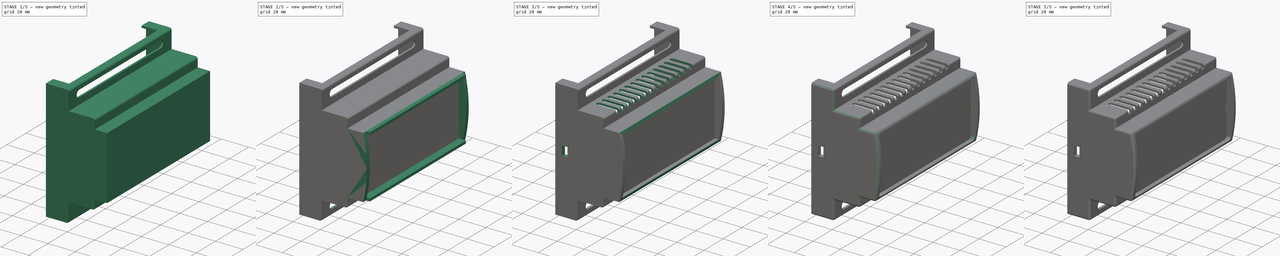
[diagram: build sequence overview — one tinted view per stage of 5, left to right]
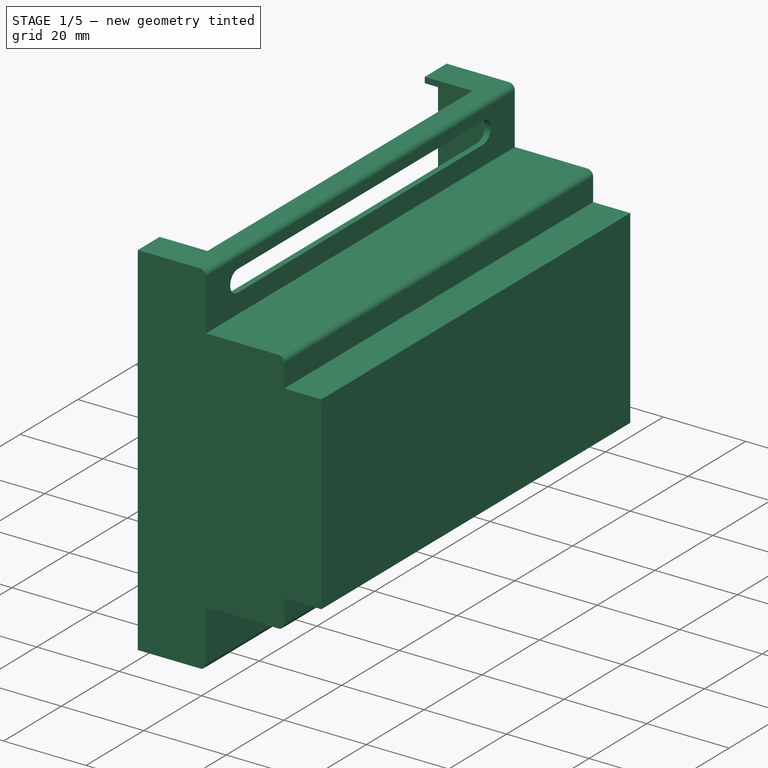
[diagram: stage 1 of 5 — iso view after this stage's code; geometry added in this stage tinted green]
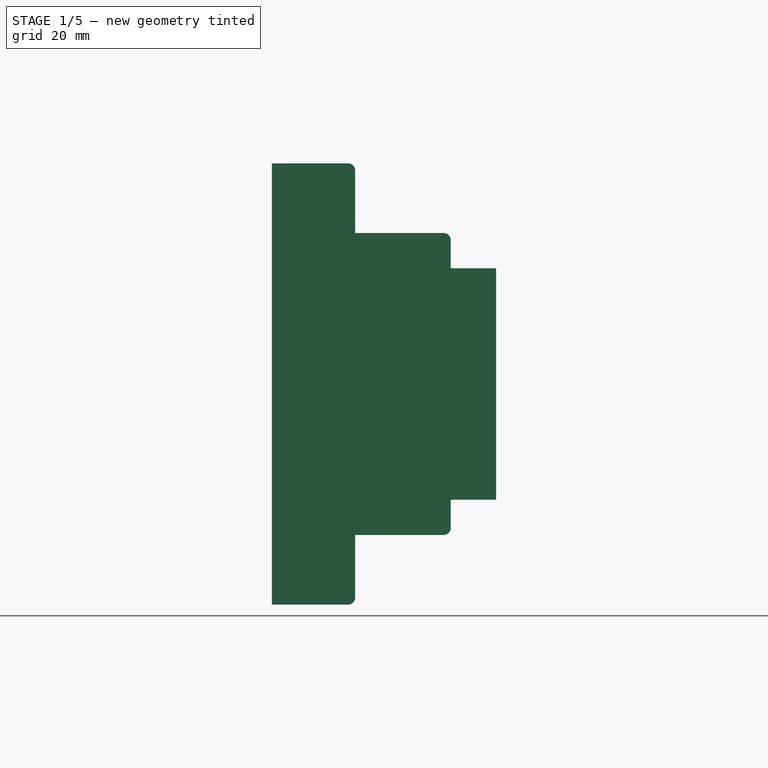
[diagram: stage 1 of 5 — front view after this stage's code; geometry added in this stage tinted green]
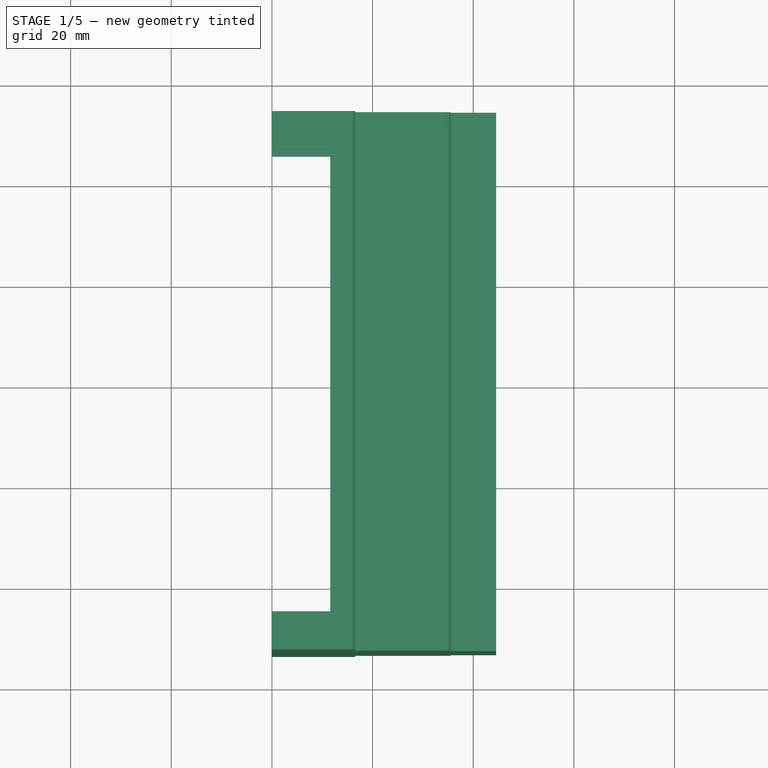
[diagram: stage 1 of 5 — top view after this stage's code; geometry added in this stage tinted green]
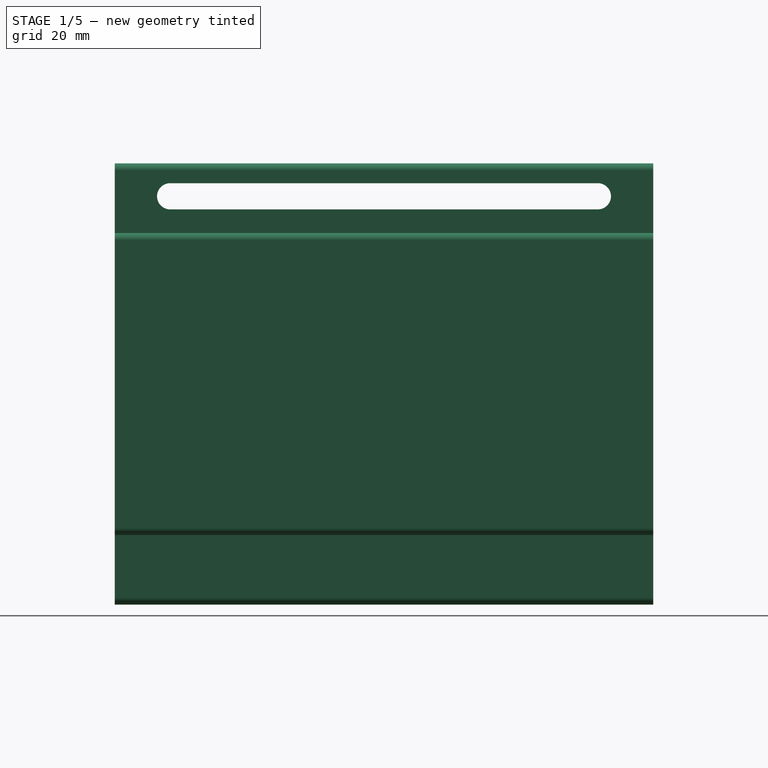
[diagram: stage 1 of 5 — right view after this stage's code; geometry added in this stage tinted green]
FCSTD DOCUMENT  (FreeCAD 1.0R39285 (Git))
Label: Parte superior
License: All rights reserved
LicenseURL: https://en.wikipedia.org/wiki/All_rights_reserved
objects: Sketcher::SketchObject×15, PartDesign::Pad×8, PartDesign::Mirrored×7, PartDesign::Pocket×7, PartDesign::LinearPattern×2, PartDesign::Fillet×2, PartDesign::Plane×1, PartDesign::Body×1
note: 101 computed .brp shape members not serialized (recipe doc carries the construction recipe); baked Part::Feature solids carry a one-line shape summary decoded from their .brp

FEATURE [Sketcher::SketchObject] Sketch
  ArcFitTolerance = 1e-06
  AttachmentSupport = -> [XZ_Plane]
  FullyConstrained = true
  MakeInternals = false
  MapMode = 5
  Placement = pos=(0,0,0) rot=(1,0,0;1.5708rad)
  sketch-geometry (35):
    g0: LineSegment StartX=0 StartY=43.85 StartZ=0 EndX=15.14 EndY=43.85 EndZ=0
    g1: LineSegment StartX=16.54 StartY=42.45 StartZ=0 EndX=16.54 EndY=30 EndZ=0
    g2: LineSegment StartX=16.54 StartY=30 StartZ=0 EndX=34.14 EndY=30 EndZ=0
    g3: LineSegment StartX=35.54 StartY=28.6 StartZ=0 EndX=35.54 EndY=23 EndZ=0
    g4: LineSegment StartX=44.54 StartY=23 StartZ=0 EndX=44.54 EndY=0 EndZ=0
    g5: LineSegment [constr] StartX=44.54 StartY=0 StartZ=0 EndX=0 EndY=0 EndZ=0
    g6: LineSegment StartX=0 StartY=-43.85 StartZ=0 EndX=15.14 EndY=-43.85 EndZ=0
    g7: LineSegment StartX=16.54 StartY=-42.45 StartZ=0 EndX=16.54 EndY=-30 EndZ=0
    g8: LineSegment StartX=16.54 StartY=-30 StartZ=0 EndX=34.14 EndY=-30 EndZ=0
    g9: LineSegment StartX=35.54 StartY=-28.6 StartZ=0 EndX=35.54 EndY=-23 EndZ=0
    g10: LineSegment StartX=44.54 StartY=-23 StartZ=0 EndX=44.54 EndY=0 EndZ=0
    g11: ArcOfCircle CenterX=15.14 CenterY=42.45 CenterZ=0 NormalX=0 NormalY=0 NormalZ=1 AngleXU=0 Radius=1.4 StartAngle=-1.8e-15 EndAngle=1.5708
    g12: GeomPoint [constr] X=16.54 Y=43.85 Z=0
    g13: ArcOfCircle CenterX=34.14 CenterY=28.6 CenterZ=0 NormalX=0 NormalY=0 NormalZ=1 AngleXU=0 Radius=1.4 StartAngle=0 EndAngle=1.5708
    g14: GeomPoint [constr] X=35.54 Y=30 Z=0
    g15: ArcOfCircle CenterX=34.14 CenterY=-28.6 CenterZ=0 NormalX=0 NormalY=0 NormalZ=1 AngleXU=0 Radius=1.4 StartAngle=4.71239 EndAngle=6.28319
    g16: GeomPoint [constr] X=35.54 Y=-30 Z=0
    g17: ArcOfCircle CenterX=15.14 CenterY=-42.45 CenterZ=0 NormalX=0 NormalY=0 NormalZ=1 AngleXU=0 Radius=1.4 StartAngle=4.71239 EndAngle=6.28319
    g18: GeomPoint [constr] X=16.54 Y=-43.85 Z=0
    g19: LineSegment StartX=35.54 StartY=23 StartZ=0 EndX=44.54 EndY=23 EndZ=0
    g20: LineSegment StartX=35.54 StartY=-23 StartZ=0 EndX=44.54 EndY=-23 EndZ=0
    g21: LineSegment StartX=0 StartY=-42.45 StartZ=0 EndX=15.14 EndY=-42.45 EndZ=0
    g22: LineSegment StartX=15.14 StartY=-42.45 StartZ=0 EndX=15.14 EndY=-28.6 EndZ=0
    g23: LineSegment StartX=15.14 StartY=-28.6 StartZ=0 EndX=34.14 EndY=-28.6 EndZ=0
    g24: LineSegment StartX=34.14 StartY=-28.6 StartZ=0 EndX=34.14 EndY=-21.6 EndZ=0
    g25: LineSegment StartX=34.14 StartY=-21.6 StartZ=0 EndX=43.14 EndY=-21.6 EndZ=0
    g26: LineSegment StartX=43.14 StartY=-21.6 StartZ=0 EndX=43.14 EndY=0 EndZ=0
    g27: LineSegment StartX=43.14 StartY=21.6 StartZ=0 EndX=43.14 EndY=0 EndZ=0
    g28: LineSegment StartX=34.14 StartY=21.6 StartZ=0 EndX=43.14 EndY=21.6 EndZ=0
    g29: LineSegment StartX=34.14 StartY=28.6 StartZ=0 EndX=34.14 EndY=21.6 EndZ=0
    g30: LineSegment StartX=15.14 StartY=28.6 StartZ=0 EndX=34.14 EndY=28.6 EndZ=0
    g31: LineSegment StartX=15.14 StartY=42.45 StartZ=0 EndX=15.14 EndY=28.6 EndZ=0
    g32: LineSegment StartX=0 StartY=42.45 StartZ=0 EndX=15.14 EndY=42.45 EndZ=0
    g33: LineSegment StartX=0 StartY=-42.45 StartZ=0 EndX=0 EndY=-43.85 EndZ=0
    g34: LineSegment StartX=0 StartY=43.85 StartZ=0 EndX=0 EndY=42.45 EndZ=0
  constraints (94):
    c: PointOnObject(g0,g-2)
    c: Horizontal(g0)
    c: Vertical(g1)
    c: Coincident(g2,g1)
    c: Horizontal(g2)
    c: Vertical(g3)
    c: PointOnObject(g4,g-1)
    c: Vertical(g4)
    c: Coincident(g5,g4)
    c: Coincident(g5,g-1)
    c: Coincident(g8,g7)
    c: Equal(g4,g10)
    c: Vertical(g9)
    c: Horizontal(g8)
    c: Horizontal(g6)
    c: Vertical(g7)
    c: Vertical(g10)
    c: Distance(g8,g2) = 60
    c: Distance(g6,g0) = 87.7
    c: Coincident(g10,g4)
    c: Distance(g-2,g7) = 16.54
    c: Distance(g-2,g9) = 35.54
    c: PointOnObject(g12,g0)
    c: PointOnObject(g12,g1)
    c: Tangent(g0,g11) = 1.5708
    c: Tangent(g1,g11) = 1.5708
    c: PointOnObject(g14,g2)
    c: PointOnObject(g14,g3)
    c: Tangent(g2,g13) = 1.5708
    c: Tangent(g3,g13) = 1.5708
    c: PointOnObject(g16,g8)
    c: PointOnObject(g16,g9)
    c: Tangent(g8,g15) = -1.5708
    c: Tangent(g9,g15) = -1.5708
    c: PointOnObject(g18,g6)
    c: PointOnObject(g18,g7)
    c: Tangent(g6,g17) = -1.5708
    c: Tangent(g7,g17) = -1.5708
    c: Equal(g17,g15)
    c: Equal(g15,g13)
    c: Equal(g13,g11)
    c: Radius(g11) = 1.4
    c: Symmetric(g1,g7,g5)
    c: Symmetric(g0,g6,g5)
    c: Coincident(g19,g3)
    c: Coincident(g19,g4)
    c: Horizontal(g19)
    c: Coincident(g20,g9)
    c: Coincident(g20,g10)
    c: Horizontal(g20)
    c: Equal(g19,g20)
    c: Distance(g19,g20) = 46
    c: Distance(g-2,g10) = 44.54
    c: Coincident(g21,g22)
    c: Coincident(g22,g23)
    c: Coincident(g23,g24)
    c: Coincident(g24,g25)
    c: Coincident(g25,g26)
    c: Coincident(g26,g27)
    c: Coincident(g27,g28)
    c: Coincident(g28,g29)
    c: Coincident(g29,g30)
    c: Coincident(g30,g31)
    c: Coincident(g31,g32)
    c: Coincident(g33,g21)
    c: Coincident(g33,g6)
    c: Vertical(g33)
    c: Coincident(g34,g0)
    c: Coincident(g34,g32)
    c: Vertical(g34)
    c: Horizontal(g32)
    c: Vertical(g31)
    c: Horizontal(g30)
    c: Horizontal(g28)
    c: Vertical(g29)
    c: Vertical(g27)
    c: Vertical(g26)
    c: Vertical(g24)
    c: Vertical(g22)
    c: Horizontal(g25)
    c: Horizontal(g23)
    c: Horizontal(g21)
    c: Distance(g0,g32) = 1.4
    c: Vertical(g0,g31)
    c: Vertical(g29,g2)
    c: Horizontal(g29,g3)
    c: Distance(g28,g19) = 1.4
    c: Horizontal(g26,g4)
    c: Equal(g0,g21)
    c: Equal(g26,g27)
    c: Equal(g28,g25)
    c: Equal(g24,g29)
    c: Equal(g31,g22)
    c: Distance(g4,g27) = 1.4
FEATURE [PartDesign::Pad] Pad
  Direction = (0,-1,2e-16)
  Length = 107
  Length2 = 10
  Midplane = true
  Placement = pos=(0,0,0) rot=(1,0,0;1.5708rad)
  Profile = -> Sketch
  ReferenceAxis = -> Sketch [N_Axis]
  Refine = true
  Suppressed = false
  Type = 0
FEATURE [PartDesign::Plane] DatumPlane
  AttachmentSupport = -> [Pad]
  Length = 91.043
  MapMode = 5
  Placement = pos=(0,-53.5,0) rot=(1,0,0;1.5708rad)
  ResizeMode = 0
  Width = 103.903
FEATURE [Sketcher::SketchObject] Sketch001
  ArcFitTolerance = 1e-06
  AttachmentSupport = -> [DatumPlane]
  ExternalGeometry = -> [Pad]
  FullyConstrained = true
  MakeInternals = false
  MapMode = 5
  Placement = pos=(0,-53.5,0) rot=(1,0,0;1.5708rad)
  sketch-geometry (12):
    g0: LineSegment StartX=0 StartY=42.45 StartZ=0 EndX=15.14 EndY=42.45 EndZ=0
    g1: LineSegment StartX=15.14 StartY=28.6 StartZ=0 EndX=15.14 EndY=42.45 EndZ=0
    g2: LineSegment StartX=15.14 StartY=28.6 StartZ=0 EndX=34.14 EndY=28.6 EndZ=0
    g3: LineSegment StartX=34.14 StartY=21.6 StartZ=0 EndX=34.14 EndY=28.6 EndZ=0
    g4: LineSegment StartX=34.14 StartY=21.6 StartZ=0 EndX=43.14 EndY=21.6 EndZ=0
    g5: LineSegment StartX=43.14 StartY=21.6 StartZ=0 EndX=43.14 EndY=-21.6 EndZ=0
    g6: LineSegment StartX=34.14 StartY=-21.6 StartZ=0 EndX=34.14 EndY=-28.6 EndZ=0
    g7: LineSegment StartX=34.14 StartY=-21.6 StartZ=0 EndX=43.14 EndY=-21.6 EndZ=0
    g8: LineSegment StartX=34.14 StartY=-28.6 StartZ=0 EndX=15.14 EndY=-28.6 EndZ=0
    g9: LineSegment StartX=15.14 StartY=-28.6 StartZ=0 EndX=15.14 EndY=-42.45 EndZ=0
    g10: LineSegment StartX=15.14 StartY=-42.45 StartZ=0 EndX=0 EndY=-42.45 EndZ=0
    g11: LineSegment StartX=0 StartY=-42.45 StartZ=0 EndX=0 EndY=42.45 EndZ=0
  constraints (24):
    c: Coincident(g0,g-3)
    c: Coincident(g0,g-4)
    c: Coincident(g1,g-5)
    c: Coincident(g1,g0)
    c: Coincident(g2,g1)
    c: Coincident(g2,g-6)
    c: Coincident(g3,g-7)
    c: Coincident(g3,g2)
    c: Coincident(g4,g3)
    c: Coincident(g4,g-8)
    c: Coincident(g5,g4)
    c: Coincident(g5,g-9)
    c: Coincident(g6,g-10)
    c: Coincident(g6,g-11)
    c: Coincident(g7,g6)
    c: Coincident(g7,g5)
    c: Coincident(g8,g6)
    c: Coincident(g8,g-12)
    c: Coincident(g9,g8)
    c: Coincident(g9,g-13)
    c: Coincident(g10,g9)
    c: Coincident(g10,g-13)
    c: Coincident(g11,g10)
    c: Coincident(g11,g0)
FEATURE [PartDesign::Pad] Pad001
  BaseFeature = -> Pad
  Direction = (0,-1,2e-16)
  Length = 3
  Length2 = 10
  Placement = pos=(0,0,0) rot=(1,0,0;1.5708rad)
  Profile = -> Sketch001
  ReferenceAxis = -> Sketch001 [N_Axis]
  Refine = true
  Reversed = true
  Suppressed = false
  Type = 0
FEATURE [PartDesign::Mirrored] Mirrored
  BaseFeature = -> Pad001
  MirrorPlane = -> XZ_Plane
  Originals = -> [Pad001]
  Placement = pos=(0,0,0) rot=(1,0,0;1.5708rad)
  Refine = true
  Suppressed = false
  TransformMode = 0
FEATURE [Sketcher::SketchObject] Sketch002
  ArcFitTolerance = 1e-06
  AttachmentSupport = -> [Mirrored]
  FullyConstrained = true
  MakeInternals = false
  MapMode = 5
  Placement = pos=(0,1.93e-14,43.85) rot=(0,0,1;3.14159rad)
  sketch-geometry (4):
    g0: LineSegment StartX=0 StartY=-45.925 StartZ=0 EndX=0 EndY=45.925 EndZ=0
    g1: LineSegment StartX=0 StartY=45.925 StartZ=0 EndX=-11.6 EndY=45.925 EndZ=0
    g2: LineSegment StartX=-11.6 StartY=45.925 StartZ=0 EndX=-11.6 EndY=-45.925 EndZ=0
    g3: LineSegment StartX=-11.6 StartY=-45.925 StartZ=0 EndX=0 EndY=-45.925 EndZ=0
  constraints (11):
    c: Coincident(g0,g1)
    c: Coincident(g1,g2)
    c: Coincident(g2,g3)
    c: Coincident(g3,g0)
    c: Vertical(g0)
    c: Horizontal(g1)
    c: Horizontal(g3)
    c: PointOnObject(g0,g-2)
    c: Distance(g-1,g3) = 45.925
    c: Symmetric(g2,g1,g-1)
    c: Distance(g0,g2) = 11.6
FEATURE [PartDesign::Pocket] Pocket
  BaseFeature = -> Mirrored
  Direction = (0,0,-1)
  Length = 0
  Length2 = 5
  Placement = pos=(0,0,0) rot=(1,0,0;1.5708rad)
  Profile = -> Sketch002
  ReferenceAxis = -> Sketch002 [N_Axis]
  Refine = true
  Suppressed = false
  Type = 3
  UpToFace = -> Mirrored [Face4]
FEATURE [Sketcher::SketchObject] Sketch003
  ArcFitTolerance = 1e-06
  AttachmentSupport = -> [Pocket]
  FullyConstrained = true
  MakeInternals = false
  MapMode = 5
  Placement = pos=(16.54,0,0) rot=(0.707107,0,0.707107;3.14159rad)
  sketch-geometry (7):
    g0: LineSegment [constr] StartX=37.3 StartY=42.5 StartZ=0 EndX=37.3 EndY=-42.5 EndZ=0
    g1: ArcOfCircle CenterX=37.3 CenterY=42.5 CenterZ=0 NormalX=0 NormalY=0 NormalZ=-1 AngleXU=-1.5708 Radius=2.6 StartAngle=1.5708 EndAngle=4.71239
    g2: LineSegment StartX=39.9 StartY=42.5 StartZ=0 EndX=39.9 EndY=0 EndZ=0
    g3: LineSegment StartX=39.9 StartY=0 StartZ=0 EndX=39.9 EndY=-42.5 EndZ=0
    g4: ArcOfCircle CenterX=37.3 CenterY=-42.5 CenterZ=0 NormalX=0 NormalY=0 NormalZ=-1 AngleXU=1.5708 Radius=2.6 StartAngle=1.5708 EndAngle=4.71239
    g5: LineSegment StartX=34.7 StartY=0 StartZ=0 EndX=34.7 EndY=-42.5 EndZ=0
    g6: LineSegment StartX=34.7 StartY=42.5 StartZ=0 EndX=34.7 EndY=0 EndZ=0
  constraints (17):
    c: Distance(g-2,g0) = 37.3
    c: Symmetric(g0,g0,g-1)
    c: DistanceY(g0,g0) = 85
    c: Tangent(g1,g2) = 1.5708
    c: Tangent(g1,g6) = -1.5708
    c: Coincident(g2,g3)
    c: Tangent(g3,g4) = 1.5708
    c: Tangent(g4,g5) = -1.5708
    c: Coincident(g5,g6)
    c: PointOnObject(g2,g-1)
    c: PointOnObject(g5,g-1)
    c: Symmetric(g1,g1,g0)
    c: Symmetric(g4,g3,g0)
    c: Vertical(g2)
    c: Vertical(g3)
    c: Vertical(g5)
    c: Distance(g2,g0) = 2.6
FEATURE [PartDesign::Pocket] Pocket001
  BaseFeature = -> Pocket
  Direction = (-1,0,2e-16)
  Length = 5
  Length2 = 5
  Placement = pos=(0,0,0) rot=(1,0,0;1.5708rad)
  Profile = -> Sketch003
  ReferenceAxis = -> Sketch003 [N_Axis]
  Refine = true
  Suppressed = false
  Type = 1
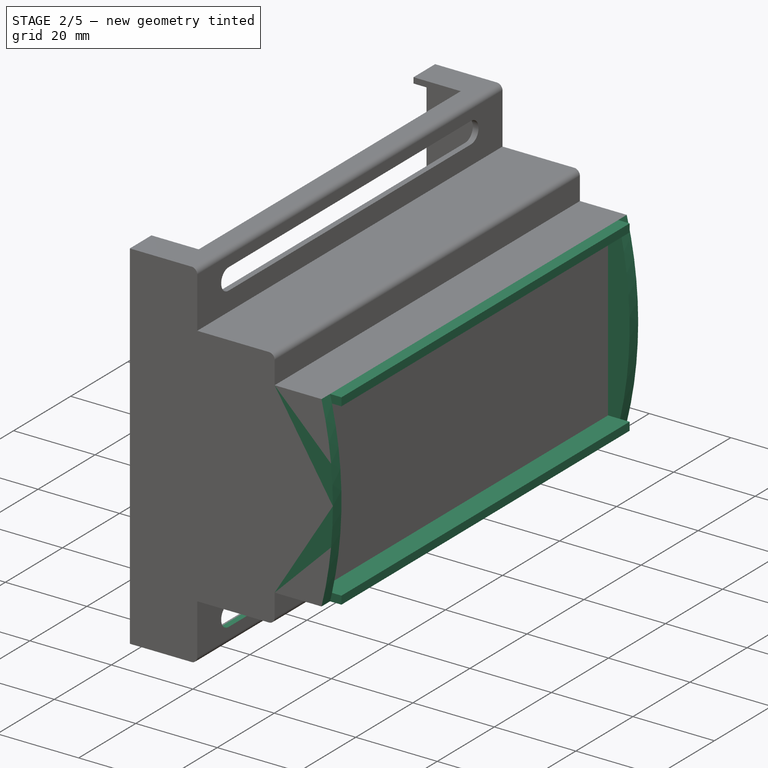
[diagram: stage 2 of 5 — iso view after this stage's code; geometry added in this stage tinted green]
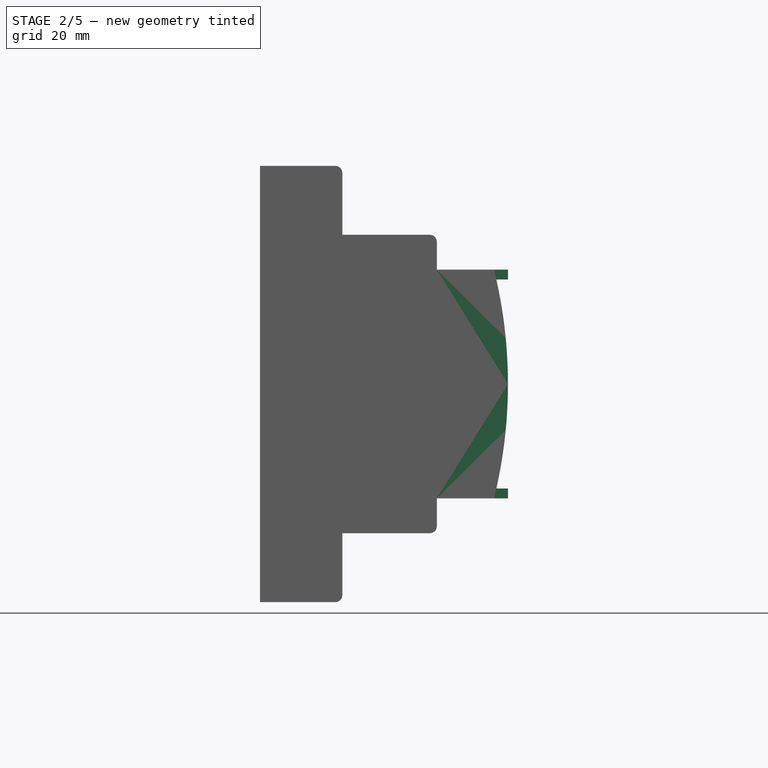
[diagram: stage 2 of 5 — front view after this stage's code; geometry added in this stage tinted green]
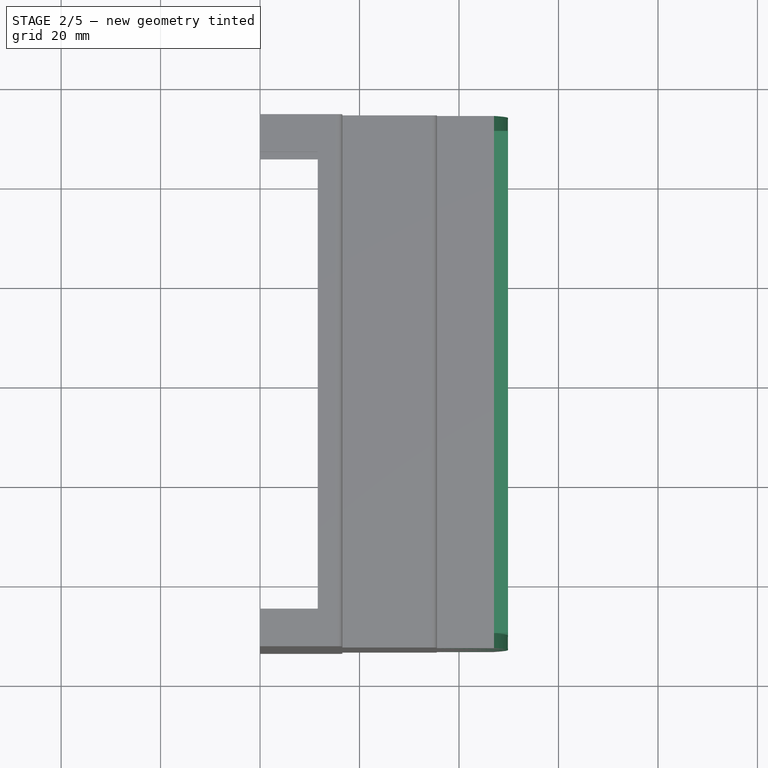
[diagram: stage 2 of 5 — top view after this stage's code; geometry added in this stage tinted green]
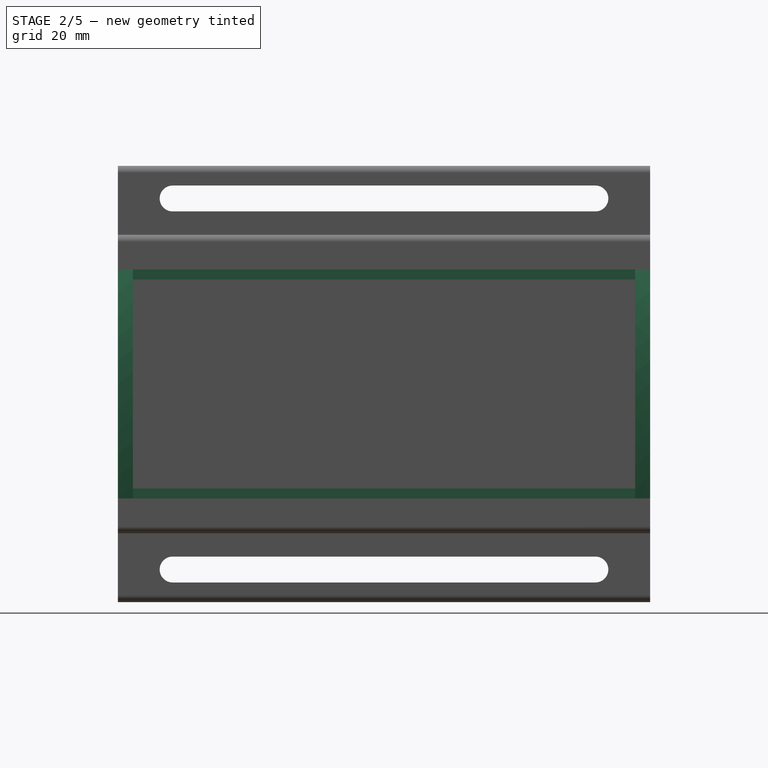
[diagram: stage 2 of 5 — right view after this stage's code; geometry added in this stage tinted green]
FEATURE [PartDesign::Mirrored] Mirrored001
  BaseFeature = -> Pocket001
  MirrorPlane = -> Sketch003 [V_Axis]
  Originals = -> [Pocket001]
  Placement = pos=(0,0,0) rot=(1,0,0;1.5708rad)
  Refine = true
  Suppressed = false
  TransformMode = 0
FEATURE [Sketcher::SketchObject] Sketch004
  ArcFitTolerance = 1e-06
  AttachmentSupport = -> [Mirrored001]
  ExternalGeometry = -> [Mirrored001]
  FullyConstrained = true
  MakeInternals = false
  MapMode = 5
  Placement = pos=(0,-53.5,2.62e-14) rot=(1,0,0;1.5708rad)
  sketch-geometry (5):
    g0: LineSegment StartX=44.54 StartY=23 StartZ=0 EndX=44.54 EndY=-23 EndZ=0
    g1: LineSegment StartX=44.54 StartY=-23 StartZ=0 EndX=47.04 EndY=-23 EndZ=0
    g2: LineSegment StartX=44.54 StartY=23 StartZ=0 EndX=47.04 EndY=23 EndZ=0
    g3: ArcOfCircle CenterX=-46.0243 CenterY=1.7615e-12 CenterZ=0 NormalX=0 NormalY=0 NormalZ=1 AngleXU=0 Radius=95.8643 StartAngle=6.0409 EndAngle=6.52547
    g4: GeomPoint X=47.5116 Y=-21 Z=0
  constraints (13):
    c: Coincident(g0,g-3)
    c: Coincident(g0,g-3)
    c: Coincident(g1,g0)
    c: Horizontal(g1)
    c: Coincident(g2,g0)
    c: Horizontal(g2)
    c: Equal(g2,g1)
    c: Coincident(g3,g2)
    c: Coincident(g3,g1)
    c: Distance(g1,g1) = 2.5
    c: Distance(g3,g0) = -5.3
    c: PointOnObject(g4,g3)
    c: DistanceY(g1,g4) = 2
FEATURE [PartDesign::Pad] Pad002
  BaseFeature = -> Mirrored001
  Direction = (0,-1,2e-16)
  Length = 3
  Length2 = 10
  Placement = pos=(0,0,0) rot=(1,0,0;1.5708rad)
  Profile = -> Sketch004
  ReferenceAxis = -> Sketch004 [N_Axis]
  Refine = true
  Reversed = true
  Suppressed = false
  Type = 0
FEATURE [PartDesign::Mirrored] Mirrored002
  BaseFeature = -> Pad002
  MirrorPlane = -> XZ_Plane
  Originals = -> [Pad002]
  Placement = pos=(0,0,0) rot=(1,0,0;1.5708rad)
  Refine = true
  Suppressed = false
  TransformMode = 0
FEATURE [Sketcher::SketchObject] Sketch005
  ArcFitTolerance = 1e-06
  AttachmentSupport = -> [Mirrored002]
  ExternalGeometry = -> [Mirrored002]
  FullyConstrained = true
  MakeInternals = false
  MapMode = 5
  Placement = pos=(8.3e-15,-9.7e-15,-23) rot=(1,0,0;3.14159rad)
  sketch-geometry (6):
    g0: LineSegment StartX=47.04 StartY=-50.5 StartZ=0 EndX=44.54 EndY=-50.5 EndZ=0
    g1: LineSegment StartX=44.54 StartY=-50.5 StartZ=0 EndX=44.54 EndY=50.5 EndZ=0
    g2: LineSegment StartX=44.54 StartY=50.5 StartZ=0 EndX=47.04 EndY=50.5 EndZ=0
    g3: LineSegment StartX=47.04 StartY=-50.5 StartZ=0 EndX=49.84 EndY=-50.5 EndZ=0
    g4: LineSegment StartX=47.04 StartY=50.5 StartZ=0 EndX=49.84 EndY=50.5 EndZ=0
    g5: LineSegment StartX=49.84 StartY=50.5 StartZ=0 EndX=49.84 EndY=-50.5 EndZ=0
  constraints (12):
    c: Coincident(g0,g-5)
    c: Coincident(g0,g-5)
    c: Coincident(g1,g0)
    c: Coincident(g1,g-4)
    c: Coincident(g2,g1)
    c: Coincident(g2,g-4)
    c: Coincident(g3,g0)
    c: Coincident(g3,g-7)
    c: Coincident(g4,g2)
    c: Coincident(g4,g-6)
    c: Coincident(g5,g4)
    c: Coincident(g5,g3)
FEATURE [PartDesign::Pad] Pad003
  BaseFeature = -> Mirrored002
  Direction = (0,0,-1)
  Length = 2
  Length2 = 10
  Placement = pos=(0,0,0) rot=(1,0,0;1.5708rad)
  Profile = -> Sketch005
  ReferenceAxis = -> Sketch005 [N_Axis]
  Refine = true
  Reversed = true
  Suppressed = false
  Type = 0
  UseCustomVector = true
FEATURE [PartDesign::Mirrored] Mirrored003
  BaseFeature = -> Pad003
  MirrorPlane = -> XY_Plane
  Originals = -> [Pad003]
  Placement = pos=(0,0,0) rot=(1,0,0;1.5708rad)
  Refine = true
  Suppressed = false
  TransformMode = 0
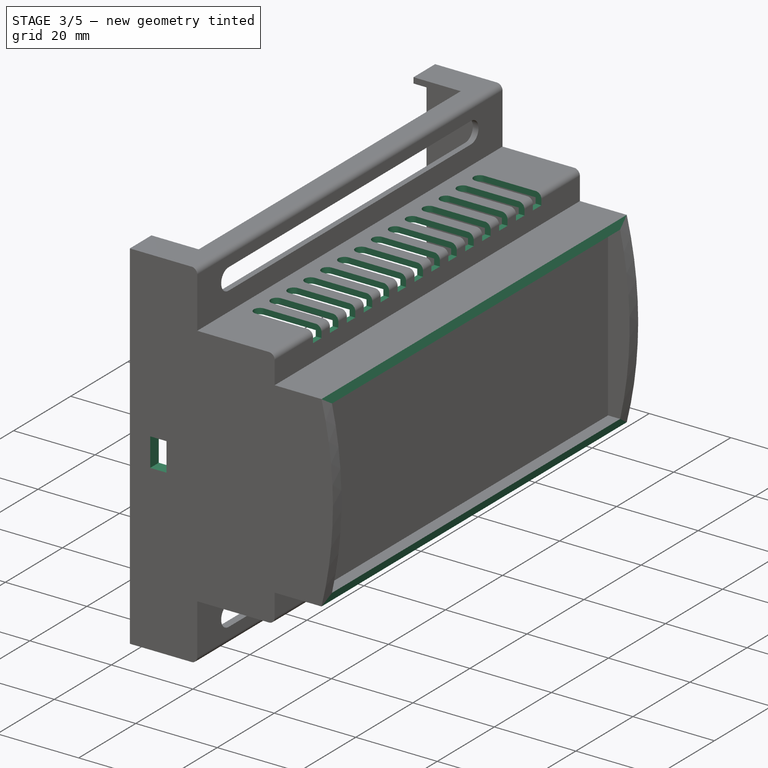
[diagram: stage 3 of 5 — iso view after this stage's code; geometry added in this stage tinted green]
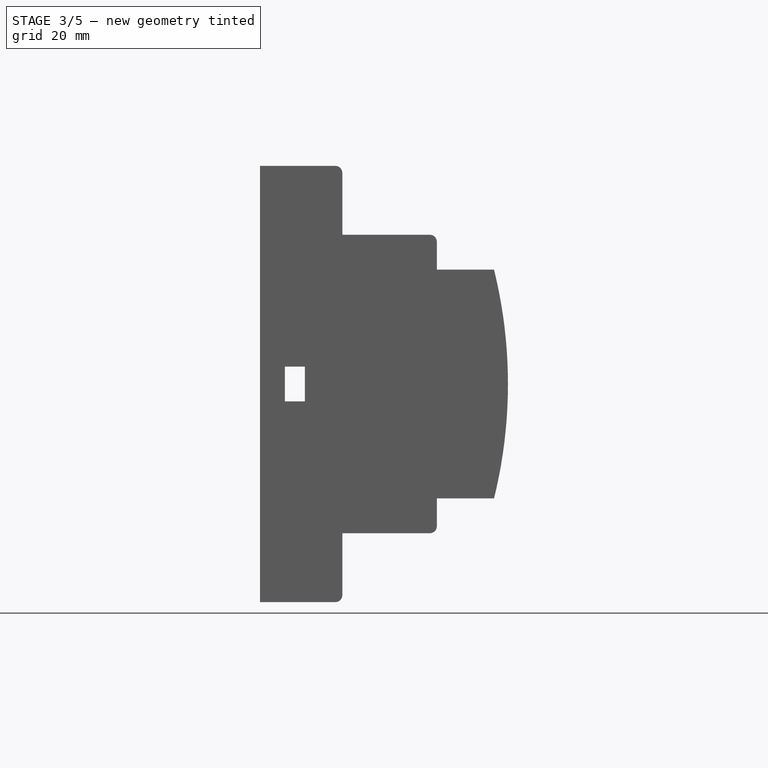
[diagram: stage 3 of 5 — front view after this stage's code; geometry added in this stage tinted green]
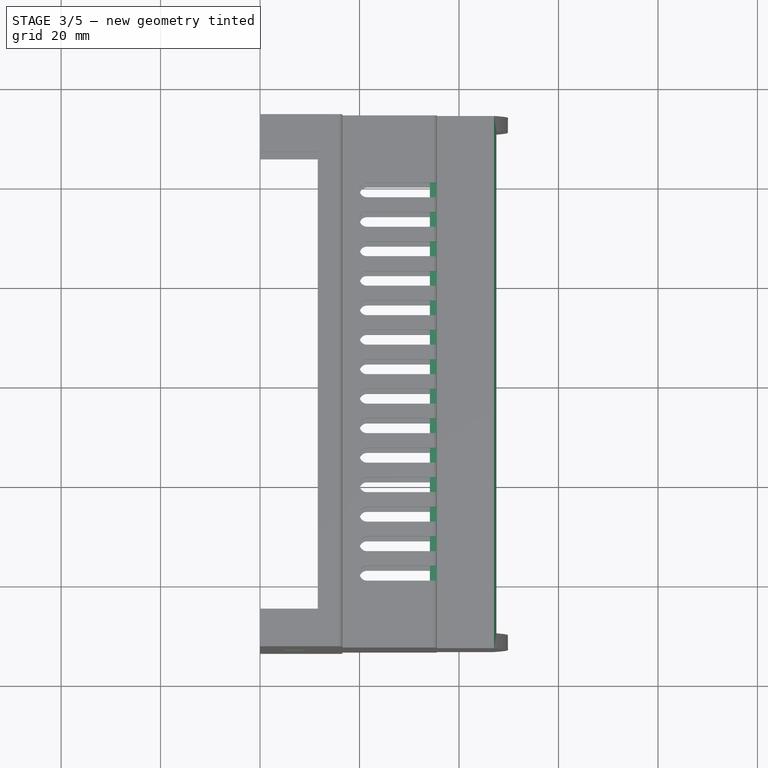
[diagram: stage 3 of 5 — top view after this stage's code; geometry added in this stage tinted green]
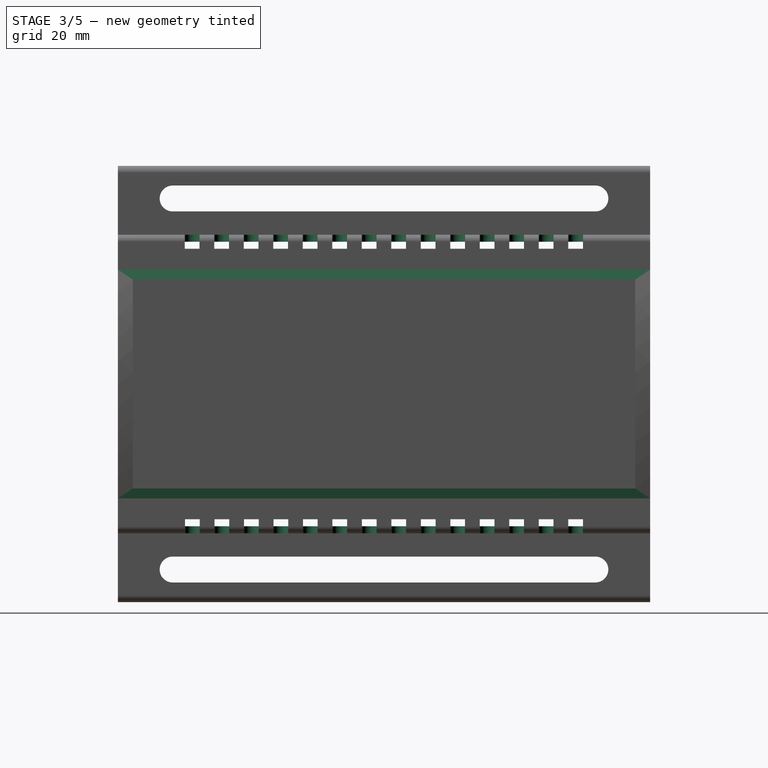
[diagram: stage 3 of 5 — right view after this stage's code; geometry added in this stage tinted green]
FEATURE [Sketcher::SketchObject] Sketch006
  ArcFitTolerance = 1e-06
  AttachmentSupport = -> [Mirrored003]
  ExternalGeometry = -> [Mirrored003]
  FullyConstrained = true
  MakeInternals = false
  MapMode = 5
  Placement = pos=(0,-1.32e-14,-30) rot=(1,0,0;3.14159rad)
  sketch-geometry (7):
    g0: LineSegment [constr] StartX=20 StartY=40 StartZ=0 EndX=20 EndY=-40 EndZ=0
    g1: LineSegment [constr] StartX=20 StartY=40 StartZ=0 EndX=35.54 EndY=40 EndZ=0
    g2: LineSegment [constr] StartX=20 StartY=-40 StartZ=0 EndX=35.54 EndY=-40 EndZ=0
    g3: LineSegment StartX=35.54 StartY=40 StartZ=0 EndX=35.54 EndY=37.037 EndZ=0
    g4: LineSegment StartX=35.54 StartY=37.037 StartZ=0 EndX=21.4815 EndY=37.037 EndZ=0
    g5: LineSegment StartX=35.54 StartY=40 StartZ=0 EndX=21.4815 EndY=40 EndZ=0
    g6: ArcOfCircle CenterX=21.4815 CenterY=38.5185 CenterZ=0 NormalX=0 NormalY=0 NormalZ=1 AngleXU=0 Radius=1.48148 StartAngle=1.5708 EndAngle=4.71239
  constraints (23):
    c: Symmetric(g0,g0,g-1)
    c: Distance(g-2,g0) = 20
    c: DistanceY(g0,g0) = 80
    c: Coincident(g1,g0)
    c: PointOnObject(g1,g-3)
    c: Horizontal(g1)
    c: Coincident(g2,g0)
    c: PointOnObject(g2,g-3)
    c: Horizontal(g2)
    c: Coincident(g3,g1)
    c: PointOnObject(g3,g-3)
    c: Coincident(g4,g3)
    c: Horizontal(g4)
    c: Coincident(g5,g1)
    c: PointOnObject(g5,g1)
    c: Equal(g5,g4)
    c: Coincident(g6,g4)
    c: Coincident(g6,g5)
    c: Symmetric(g5,g4,g6)
    c: DistanceY(g3,g3) = 2.96296
    c: Tangent(g0,g6)
    c: DistanceY(g-3,g-3) = 107
    c: Distance(g-2,g-3) = 35.54
FEATURE [PartDesign::Pocket] Pocket002
  BaseFeature = -> Mirrored003
  Direction = (0,0,1)
  Length = 2.8
  Length2 = 5
  Placement = pos=(0,0,0) rot=(1,0,0;1.5708rad)
  Profile = -> Sketch006
  ReferenceAxis = -> Sketch006 [N_Axis]
  Refine = true
  Suppressed = false
  Type = 0
FEATURE [PartDesign::LinearPattern] LinearPattern
  BaseFeature = -> Pocket002
  Direction = -> Y_Axis
  Length = 77.037
  Mode = 1
  Occurrences = 14
  Offset = 5.92593
  Originals = -> [Pocket002]
  Placement = pos=(0,0,0) rot=(1,0,0;1.5708rad)
  Refine = true
  Suppressed = false
  TransformMode = 0
FEATURE [Sketcher::SketchObject] Sketch007
  ArcFitTolerance = 1e-06
  AttachmentSupport = -> [LinearPattern]
  ExternalGeometry = -> [LinearPattern]
  FullyConstrained = true
  MakeInternals = false
  MapMode = 5
  Placement = pos=(0,1.32e-14,30) rot=(0,0,1;3.14159rad)
  sketch-geometry (6):
    g0: LineSegment [constr] StartX=-20 StartY=-40 StartZ=0 EndX=-20 EndY=40 EndZ=0
    g1: LineSegment [constr] StartX=-20 StartY=-40 StartZ=0 EndX=-35.54 EndY=-40 EndZ=0
    g2: LineSegment StartX=-35.54 StartY=-40 StartZ=0 EndX=-35.54 EndY=-37.037 EndZ=0
    g3: LineSegment StartX=-35.54 StartY=-37.037 StartZ=0 EndX=-21.4815 EndY=-37.037 EndZ=0
    g4: LineSegment StartX=-35.54 StartY=-40 StartZ=0 EndX=-21.4815 EndY=-40 EndZ=0
    g5: ArcOfCircle CenterX=-21.4815 CenterY=-38.5185 CenterZ=0 NormalX=0 NormalY=0 NormalZ=1 AngleXU=0 Radius=1.48148 StartAngle=4.71239 EndAngle=7.85398
  constraints (18):
    c: Distance(g-2,g0) = 20
    c: DistanceY(g0,g0) = 80
    c: Symmetric(g0,g0,g-1)
    c: Coincident(g1,g0)
    c: PointOnObject(g1,g-3)
    c: Horizontal(g1)
    c: Coincident(g2,g1)
    c: PointOnObject(g2,g-3)
    c: Coincident(g3,g2)
    c: Horizontal(g3)
    c: Coincident(g4,g1)
    c: PointOnObject(g4,g1)
    c: Coincident(g5,g4)
    c: Coincident(g5,g3)
    c: DistanceY(g1,g2) = 2.96296
    c: Vertical(g4,g5)
    c: Symmetric(g4,g3,g5)
    c: Tangent(g0,g5)
FEATURE [PartDesign::Pocket] Pocket003
  BaseFeature = -> LinearPattern
  Direction = (0,0,-1)
  Length = 2.8
  Length2 = 5
  Placement = pos=(0,0,0) rot=(1,0,0;1.5708rad)
  Profile = -> Sketch007
  ReferenceAxis = -> Sketch007 [N_Axis]
  Refine = true
  Suppressed = false
  Type = 0
FEATURE [PartDesign::LinearPattern] LinearPattern001
  BaseFeature = -> Pocket003
  Direction = -> Y_Axis
  Length = 77.09
  Mode = 1
  Occurrences = 14
  Offset = 5.93
  Originals = -> [Pocket003]
  Placement = pos=(0,0,0) rot=(1,0,0;1.5708rad)
  Refine = true
  Reversed = true
  Suppressed = false
  TransformMode = 0
FEATURE [Sketcher::SketchObject] Sketch008
  ArcFitTolerance = 1e-06
  AttachmentSupport = -> [LinearPattern001]
  FullyConstrained = true
  MakeInternals = false
  MapMode = 5
  Placement = pos=(0,-53.5,2.3e-14) rot=(1,0,0;1.5708rad)
  sketch-geometry (4):
    g0: LineSegment StartX=5 StartY=3.5 StartZ=0 EndX=5 EndY=-3.5 EndZ=0
    g1: LineSegment StartX=5 StartY=-3.5 StartZ=0 EndX=9 EndY=-3.5 EndZ=0
    g2: LineSegment StartX=9 StartY=-3.5 StartZ=0 EndX=9 EndY=3.5 EndZ=0
    g3: LineSegment StartX=9 StartY=3.5 StartZ=0 EndX=5 EndY=3.5 EndZ=0
  constraints (11):
    c: Coincident(g0,g1)
    c: Coincident(g1,g2)
    c: Coincident(g2,g3)
    c: Coincident(g3,g0)
    c: Vertical(g0)
    c: Horizontal(g1)
    c: Horizontal(g3)
    c: Symmetric(g2,g1,g-1)
    c: Distance(g0,g-2) = 5
    c: Distance(g2,g-2) = 9
    c: DistanceY(g1,g2) = 7
FEATURE [PartDesign::Pocket] Pocket004
  BaseFeature = -> LinearPattern001
  Direction = (0,1,-2e-16)
  Length = 5
  Length2 = 5
  Placement = pos=(0,0,0) rot=(1,0,0;1.5708rad)
  Profile = -> Sketch008
  ReferenceAxis = -> Sketch008 [N_Axis]
  Refine = true
  Suppressed = false
  Type = 1
FEATURE [Sketcher::SketchObject] Sketch009
  ArcFitTolerance = 1e-06
  AttachmentSupport = -> [Pocket004]
  ExternalGeometry = -> [Pocket004]
  FullyConstrained = true
  MakeInternals = false
  MapMode = 5
  Placement = pos=(0,50.5,0) rot=(-1,0,0;1.5708rad)
  sketch-geometry (8):
    g0: LineSegment StartX=47.04 StartY=-23 StartZ=0 EndX=49.84 EndY=-23 EndZ=0
    g1: LineSegment StartX=49.84 StartY=-23 StartZ=0 EndX=49.84 EndY=-21 EndZ=0
    g2: LineSegment StartX=49.84 StartY=-21 StartZ=0 EndX=47.5116 EndY=-21 EndZ=0
    g3: LineSegment StartX=47.04 StartY=23 StartZ=0 EndX=49.84 EndY=23 EndZ=0
    g4: LineSegment StartX=49.84 StartY=23 StartZ=0 EndX=49.84 EndY=21 EndZ=0
    g5: LineSegment StartX=49.84 StartY=21 StartZ=0 EndX=47.5116 EndY=21 EndZ=0
    g6: ArcOfCircle CenterX=-46.0243 CenterY=4.71756e-10 CenterZ=0 NormalX=0 NormalY=0 NormalZ=1 AngleXU=0 Radius=95.8643 StartAngle=6.0409 EndAngle=6.06233
    g7: ArcOfCircle CenterX=-46.0243 CenterY=-2.99874e-10 CenterZ=0 NormalX=0 NormalY=0 NormalZ=1 AngleXU=0 Radius=95.8643 StartAngle=0.220851 EndAngle=0.242286
  constraints (19):
    c: Coincident(g0,g-7)
    c: Coincident(g0,g-8)
    c: Coincident(g1,g0)
    c: Coincident(g1,g-9)
    c: Coincident(g2,g1)
    c: Coincident(g2,g-9)
    c: Coincident(g3,g-6)
    c: Coincident(g3,g-4)
    c: Coincident(g4,g3)
    c: Coincident(g4,g-5)
    c: Coincident(g5,g4)
    c: Coincident(g5,g-5)
    c: Coincident(g6,g2)
    c: Coincident(g6,g0)
    c: Tangent(g6,g-6)
    c: Coincident(g7,g3)
    c: Coincident(g7,g5)
    c: Tangent(g7,g-6)
    c: Radius(g-6) = 95.8643
FEATURE [PartDesign::Pocket] Pocket005
  BaseFeature = -> Pocket004
  Direction = (0,-1,-2e-16)
  Length = 0
  Length2 = 5
  Placement = pos=(0,0,0) rot=(1,0,0;1.5708rad)
  Profile = -> Sketch009
  ReferenceAxis = -> Sketch009 [N_Axis]
  Refine = true
  Suppressed = false
  Type = 3
  UpToFace = -> Pocket004 [Face194]
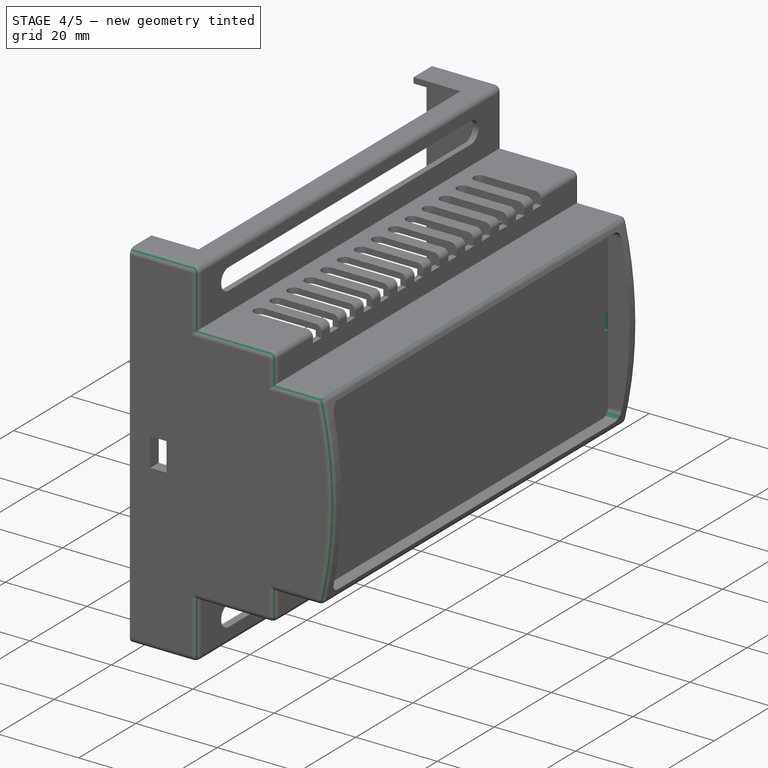
[diagram: stage 4 of 5 — iso view after this stage's code; geometry added in this stage tinted green]
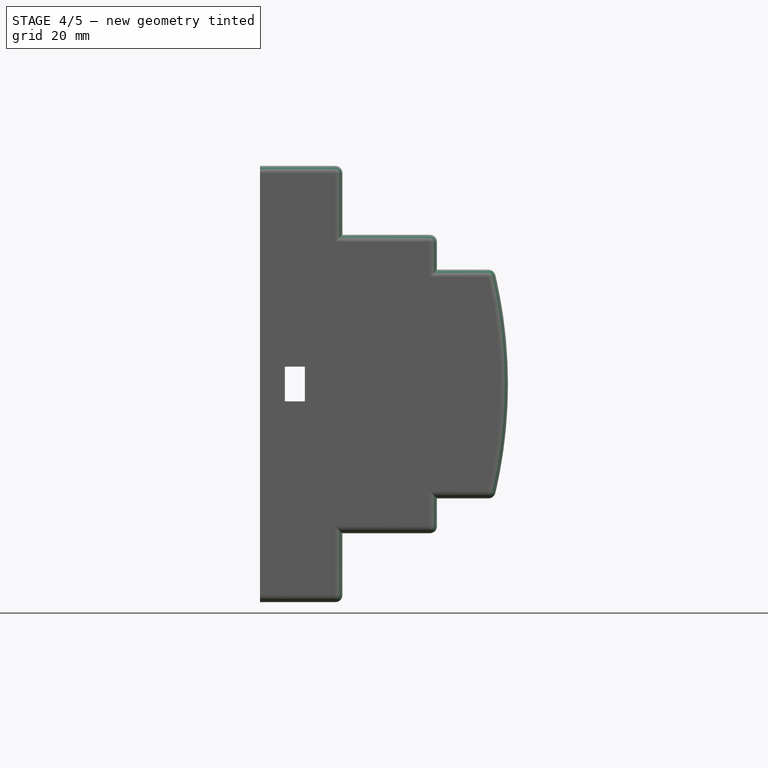
[diagram: stage 4 of 5 — front view after this stage's code; geometry added in this stage tinted green]
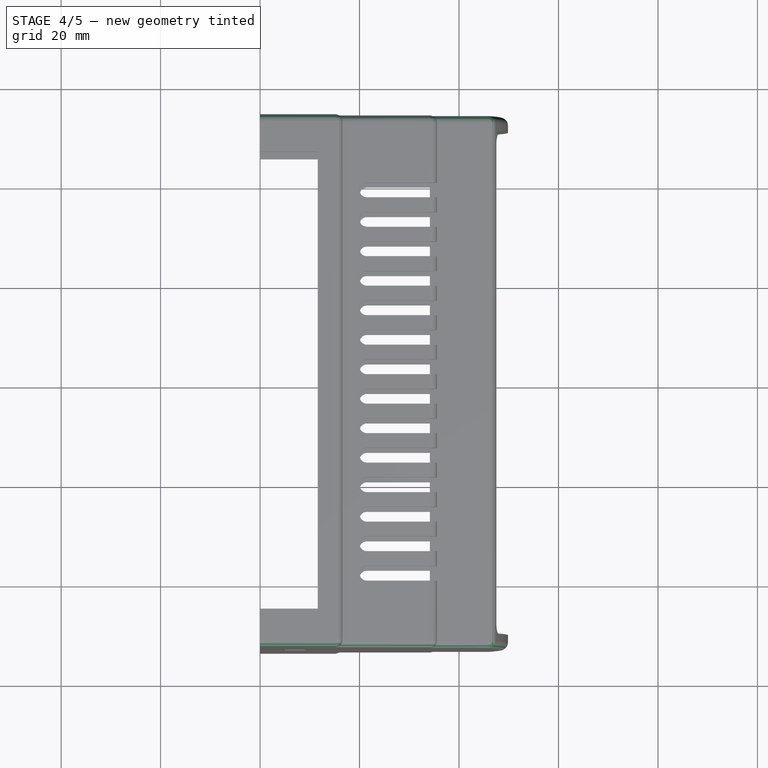
[diagram: stage 4 of 5 — top view after this stage's code; geometry added in this stage tinted green]
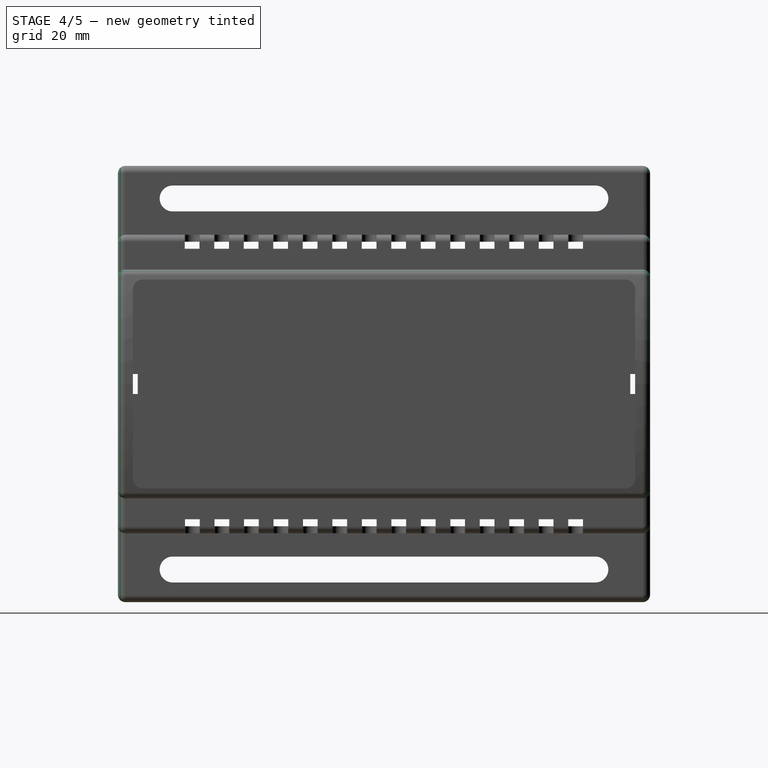
[diagram: stage 4 of 5 — right view after this stage's code; geometry added in this stage tinted green]
FEATURE [PartDesign::Fillet] Fillet
  Base = -> Pocket005 [Edge752,Edge755,Edge751,Edge750]
  BaseFeature = -> Pocket005
  Placement = pos=(0,0,0) rot=(1,0,0;1.5708rad)
  Radius = 2
  Refine = true
  SupportTransform = false
  Suppressed = false
  UseAllEdges = false
FEATURE [PartDesign::Fillet] Fillet001
  Base = -> Fillet [Edge32,Edge34,Edge36,Edge38,Edge40,Edge42,Edge43,Edge10,Edge49,Edge63,Edge61,Edge59,Edge57,Edge55,Edge53,Edge9,Edge11,Edge41,Edge39,Edge37,Edge35,Edge33,Edge31,Edge29,Edge12,Edge62,Edge60,Edge58,Edge56,Edge54,Edge52,Edge50]
  BaseFeature = -> Fillet
  Placement = pos=(0,0,0) rot=(1,0,0;1.5708rad)
  Radius = 1.5
  Refine = true
  SupportTransform = false
  Suppressed = false
  UseAllEdges = false
FEATURE [Sketcher::SketchObject] Sketch010
  ArcFitTolerance = 1e-06
  AttachmentSupport = -> [Fillet001]
  ExternalGeometry = -> [Fillet001]
  FullyConstrained = true
  MakeInternals = false
  MapMode = 5
  Placement = pos=(44.54,0,0) rot=(0.707107,0,0.707107;3.14159rad)
  sketch-geometry (4):
    g0: LineSegment StartX=-2 StartY=-50.5 StartZ=0 EndX=2 EndY=-50.5 EndZ=0
    g1: LineSegment StartX=2 StartY=-50.5 StartZ=0 EndX=2 EndY=-49.5 EndZ=0
    g2: LineSegment StartX=2 StartY=-49.5 StartZ=0 EndX=-2 EndY=-49.5 EndZ=0
    g3: LineSegment StartX=-2 StartY=-49.5 StartZ=0 EndX=-2 EndY=-50.5 EndZ=0
  constraints (11):
    c: Coincident(g0,g1)
    c: Coincident(g1,g2)
    c: Coincident(g2,g3)
    c: Coincident(g3,g0)
    c: Horizontal(g0)
    c: Vertical(g1)
    c: Vertical(g3)
    c: PointOnObject(g0,g-3)
    c: Symmetric(g2,g1,g-2)
    c: Distance(g1,g2) = 4
    c: Distance(g1,g0) = 1
FEATURE [PartDesign::Pocket] Pocket006
  BaseFeature = -> Fillet001
  Direction = (-1,0,2e-16)
  Length = 5
  Length2 = 5
  Placement = pos=(0,0,0) rot=(1,0,0;1.5708rad)
  Profile = -> Sketch010
  ReferenceAxis = -> Sketch010 [N_Axis]
  Refine = true
  Suppressed = false
  Type = 1
FEATURE [PartDesign::Mirrored] Mirrored004
  BaseFeature = -> Pocket006
  MirrorPlane = -> XZ_Plane
  Originals = -> [Pocket006]
  Placement = pos=(0,0,0) rot=(1,0,0;1.5708rad)
  Refine = true
  Suppressed = false
  TransformMode = 0
FEATURE [Sketcher::SketchObject] Sketch011
  ArcFitTolerance = 1e-06
  AttachmentSupport = -> [Mirrored004]
  ExternalGeometry = -> [Mirrored004]
  FullyConstrained = true
  MakeInternals = false
  MapMode = 5
  Placement = pos=(-1.26e-14,50.5,2.52e-14) rot=(1,0,0;1.5708rad)
  sketch-geometry (9):
    g0: LineSegment [constr] StartX=43.14 StartY=12 StartZ=0 EndX=10.2 EndY=12 EndZ=0
    g1: LineSegment StartX=43.14 StartY=14 StartZ=0 EndX=10.2 EndY=14 EndZ=0
    g2: LineSegment StartX=43.14 StartY=15 StartZ=0 EndX=10.2 EndY=15 EndZ=0
    g3: LineSegment StartX=10.2 StartY=15 StartZ=0 EndX=10.2 EndY=14 EndZ=0
    g4: LineSegment StartX=43.14 StartY=15 StartZ=0 EndX=43.14 EndY=14 EndZ=0
    g5: LineSegment StartX=10.2 StartY=9 StartZ=0 EndX=10.2 EndY=10 EndZ=0
    g6: LineSegment StartX=43.14 StartY=9 StartZ=0 EndX=10.2 EndY=9 EndZ=0
    g7: LineSegment StartX=43.14 StartY=10 StartZ=0 EndX=10.2 EndY=10 EndZ=0
    g8: LineSegment StartX=43.14 StartY=9 StartZ=0 EndX=43.14 EndY=10 EndZ=0
  constraints (27):
    c: PointOnObject(g0,g-3)
    c: Horizontal(g0)
    c: DistanceX(g0,g0) = 32.94
    c: Distance(g-1,g0) = 12
    c: PointOnObject(g1,g-3)
    c: Horizontal(g1)
    c: PointOnObject(g2,g-3)
    c: Horizontal(g2)
    c: Equal(g0,g1)
    c: Equal(g1,g2)
    c: Coincident(g3,g2)
    c: Coincident(g3,g1)
    c: Coincident(g4,g2)
    c: Coincident(g4,g1)
    c: Distance(g0,g1) = 2
    c: Distance(g2,g1) = 1
    c: Horizontal(g7)
    c: Horizontal(g6)
    c: Equal(g7,g6)
    c: Coincident(g5,g6)
    c: Coincident(g5,g7)
    c: Coincident(g8,g6)
    c: Coincident(g8,g7)
    c: Distance(g6,g7) = 1
    c: Symmetric(g5,g1,g0)
    c: Equal(g0,g7)
    c: Vertical(g5)
FEATURE [PartDesign::Pad] Pad004
  BaseFeature = -> Mirrored004
  Direction = (0,-1,2e-16)
  Length = 0.625
  Length2 = 10
  Placement = pos=(0,0,0) rot=(1,0,0;1.5708rad)
  Profile = -> Sketch011
  ReferenceAxis = -> Sketch011 [N_Axis]
  Refine = true
  Suppressed = false
  Type = 0
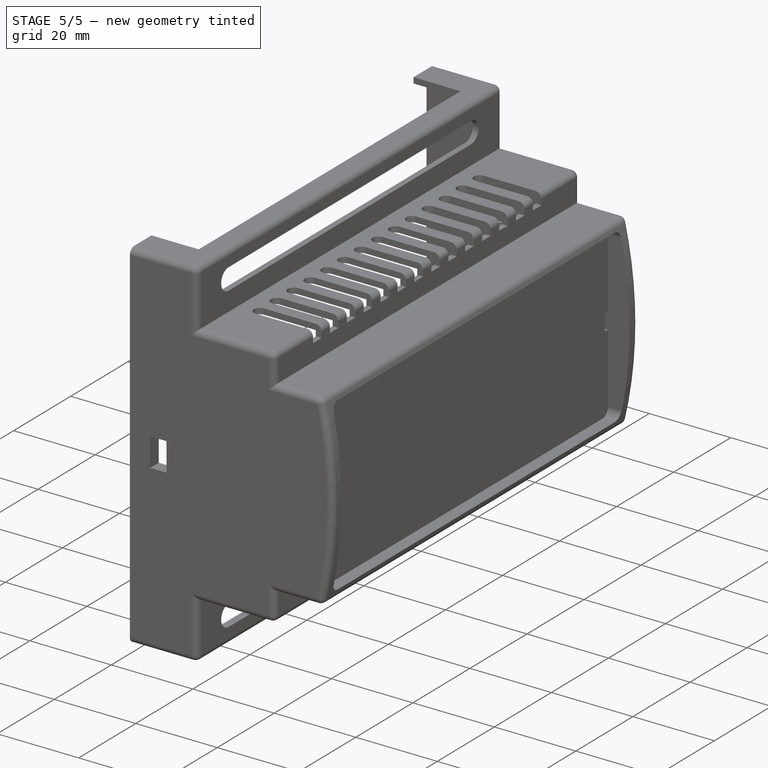
[diagram: stage 5 of 5 — iso view after this stage's code; geometry added in this stage tinted green]
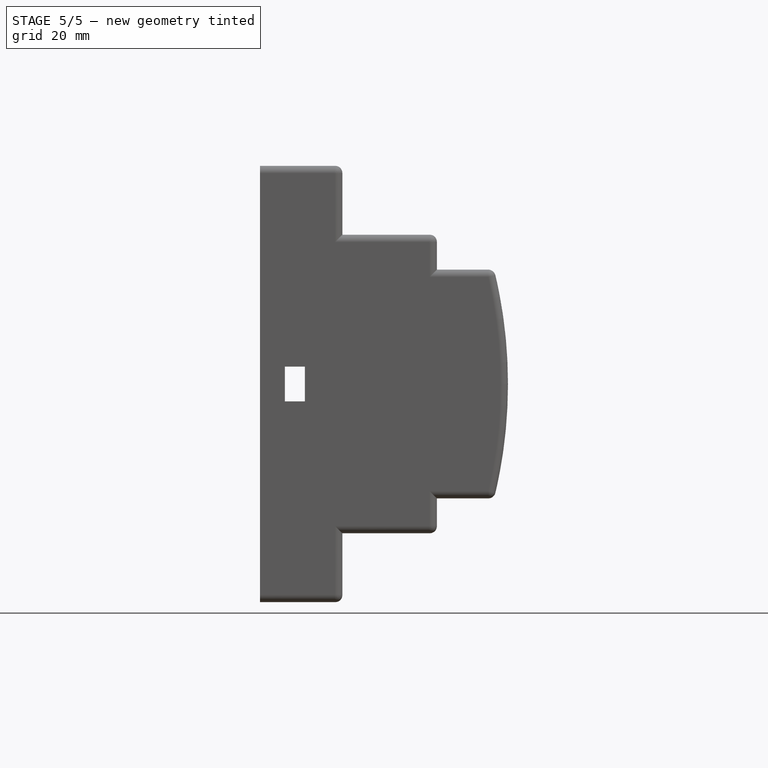
[diagram: stage 5 of 5 — front view after this stage's code; geometry added in this stage tinted green]
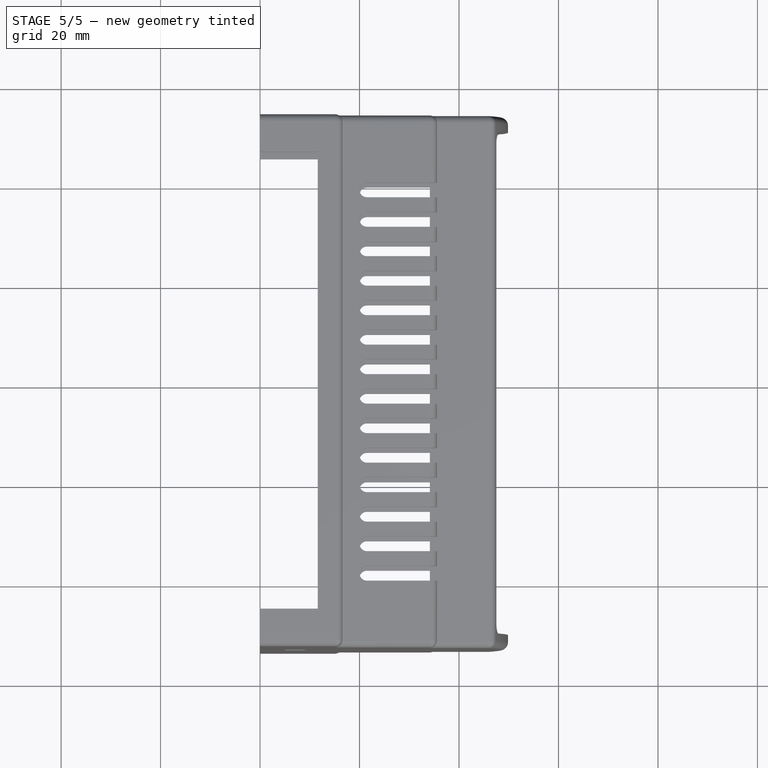
[diagram: stage 5 of 5 — top view after this stage's code; geometry added in this stage tinted green]
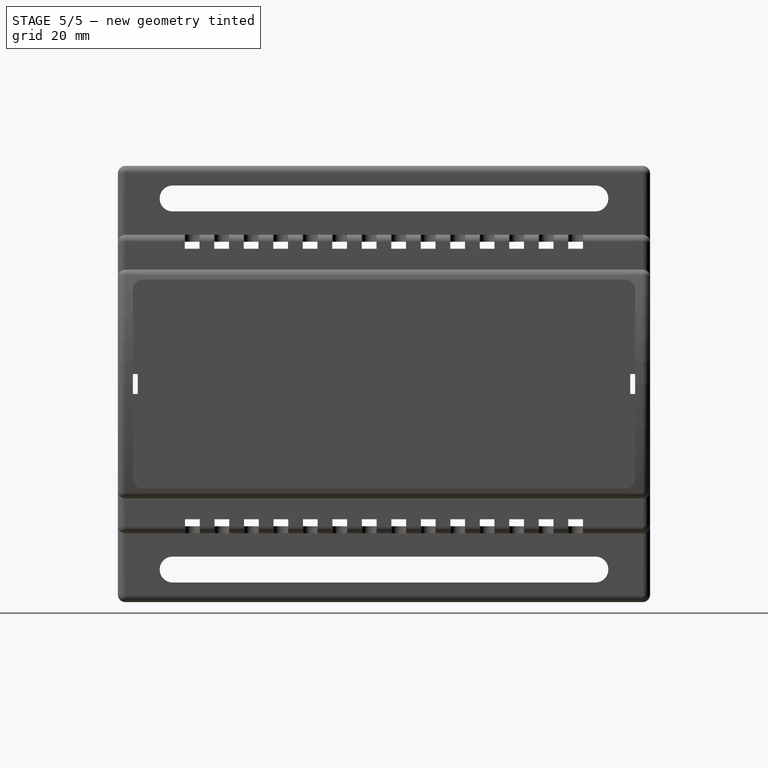
[diagram: stage 5 of 5 — right view after this stage's code; geometry added in this stage tinted green]
FEATURE [PartDesign::Mirrored] Mirrored005
  BaseFeature = -> Pad004
  MirrorPlane = -> XY_Plane
  Originals = -> [Pad004]
  Placement = pos=(0,0,0) rot=(1,0,0;1.5708rad)
  Refine = true
  Suppressed = false
  TransformMode = 0
FEATURE [Sketcher::SketchObject] Sketch012
  ArcFitTolerance = 1e-06
  AttachmentSupport = -> [Mirrored005]
  ExternalGeometry = -> [Mirrored005]
  FullyConstrained = true
  MakeInternals = false
  MapMode = 5
  Placement = pos=(-1.26e-14,-50.5,2.42e-14) rot=(-1,0,0;1.5708rad)
  sketch-geometry (16):
    g0: LineSegment StartX=10.2 StartY=15 StartZ=0 EndX=43.14 EndY=15 EndZ=0
    g1: LineSegment StartX=43.14 StartY=15 StartZ=0 EndX=43.14 EndY=14 EndZ=0
    g2: LineSegment StartX=43.14 StartY=14 StartZ=0 EndX=10.2 EndY=14 EndZ=0
    g3: LineSegment StartX=10.2 StartY=14 StartZ=0 EndX=10.2 EndY=15 EndZ=0
    g4: LineSegment StartX=10.2 StartY=10 StartZ=0 EndX=43.14 EndY=10 EndZ=0
    g5: LineSegment StartX=43.14 StartY=10 StartZ=0 EndX=43.14 EndY=9 EndZ=0
    g6: LineSegment StartX=43.14 StartY=9 StartZ=0 EndX=10.2 EndY=9 EndZ=0
    g7: LineSegment StartX=10.2 StartY=9 StartZ=0 EndX=10.2 EndY=10 EndZ=0
    g8: LineSegment StartX=10.2 StartY=-9 StartZ=0 EndX=43.14 EndY=-9 EndZ=0
    g9: LineSegment StartX=43.14 StartY=-9 StartZ=0 EndX=43.14 EndY=-10 EndZ=0
    g10: LineSegment StartX=43.14 StartY=-10 StartZ=0 EndX=10.2 EndY=-10 EndZ=0
    g11: LineSegment StartX=10.2 StartY=-10 StartZ=0 EndX=10.2 EndY=-9 EndZ=0
    g12: LineSegment StartX=10.2 StartY=-14 StartZ=0 EndX=43.14 EndY=-14 EndZ=0
    g13: LineSegment StartX=43.14 StartY=-14 StartZ=0 EndX=43.14 EndY=-15 EndZ=0
    g14: LineSegment StartX=43.14 StartY=-15 StartZ=0 EndX=10.2 EndY=-15 EndZ=0
    g15: LineSegment StartX=10.2 StartY=-15 StartZ=0 EndX=10.2 EndY=-14 EndZ=0
  constraints (32):
    c: Coincident(g0,g-9)
    c: Coincident(g0,g-4)
    c: Coincident(g1,g0)
    c: Coincident(g1,g-5)
    c: Coincident(g2,g1)
    c: Coincident(g2,g-9)
    c: Coincident(g3,g2)
    c: Coincident(g3,g0)
    c: Coincident(g4,g-10)
    c: Coincident(g4,g-8)
    c: Coincident(g5,g4)
    c: Coincident(g5,g-8)
    c: Coincident(g6,g5)
    c: Coincident(g6,g-10)
    c: Coincident(g7,g6)
    c: Coincident(g7,g4)
    c: Coincident(g8,g-13)
    c: Coincident(g8,g-17)
    c: Coincident(g9,g8)
    c: Coincident(g9,g-17)
    c: Coincident(g10,g9)
    c: Coincident(g10,g-13)
    c: Coincident(g11,g10)
    c: Coincident(g11,g8)
    c: Coincident(g12,g-15)
    c: Coincident(g12,g-18)
    c: Coincident(g13,g12)
    c: Coincident(g13,g-18)
    c: Coincident(g14,g13)
    c: Coincident(g14,g-16)
    c: Coincident(g15,g14)
    c: Coincident(g15,g12)
FEATURE [PartDesign::Pad] Pad005
  BaseFeature = -> Mirrored005
  Direction = (0,1,2e-16)
  Length = 0.625
  Length2 = 10
  Placement = pos=(0,0,0) rot=(1,0,0;1.5708rad)
  Profile = -> Sketch012
  ReferenceAxis = -> Sketch012 [N_Axis]
  Refine = true
  Suppressed = false
  Type = 0
FEATURE [Sketcher::SketchObject] Sketch013
  ArcFitTolerance = 1e-06
  AttachmentSupport = -> [Pad005]
  ExternalGeometry = -> [Pad005]
  FullyConstrained = true
  MakeInternals = false
  MapMode = 5
  Placement = pos=(0,1.26e-14,28.6) rot=(1,0,0;3.14159rad)
  sketch-geometry (9):
    g0: LineSegment [constr] StartX=34.14 StartY=-47.14 StartZ=0 EndX=19.14 EndY=-47.14 EndZ=0
    g1: LineSegment StartX=34.14 StartY=-46.25 StartZ=0 EndX=19.14 EndY=-46.25 EndZ=0
    g2: LineSegment StartX=34.14 StartY=-45.25 StartZ=0 EndX=19.14 EndY=-45.25 EndZ=0
    g3: LineSegment StartX=19.14 StartY=-46.25 StartZ=0 EndX=19.14 EndY=-45.25 EndZ=0
    g4: LineSegment StartX=34.14 StartY=-46.25 StartZ=0 EndX=34.14 EndY=-45.25 EndZ=0
    g5: LineSegment StartX=19.14 StartY=-48.03 StartZ=0 EndX=19.14 EndY=-49.03 EndZ=0
    g6: LineSegment StartX=34.14 StartY=-49.03 StartZ=0 EndX=19.14 EndY=-49.03 EndZ=0
    g7: LineSegment StartX=34.14 StartY=-48.03 StartZ=0 EndX=19.14 EndY=-48.03 EndZ=0
    g8: LineSegment StartX=34.14 StartY=-48.03 StartZ=0 EndX=34.14 EndY=-49.03 EndZ=0
  constraints (26):
    c: PointOnObject(g0,g-3)
    c: Horizontal(g0)
    c: DistanceX(g0,g0) = 15
    c: Distance(g-1,g0) = 47.14
    c: PointOnObject(g1,g-3)
    c: Horizontal(g1)
    c: Symmetric(g-3,g-3,g2)
    c: Horizontal(g2)
    c: Equal(g0,g1)
    c: Equal(g1,g2)
    c: Coincident(g3,g1)
    c: Coincident(g3,g2)
    c: Coincident(g4,g1)
    c: Coincident(g4,g2)
    c: Distance(g3,g3) = 1
    c: Horizontal(g7)
    c: Horizontal(g6)
    c: Equal(g7,g6)
    c: Coincident(g5,g7)
    c: Coincident(g5,g6)
    c: Coincident(g8,g7)
    c: Coincident(g8,g6)
    c: Distance(g5,g5) = 1
    c: Vertical(g5)
    c: Equal(g0,g7)
    c: Symmetric(g5,g1,g0)
FEATURE [PartDesign::Pad] Pad006
  BaseFeature = -> Pad005
  Direction = (0,0,-1)
  Length = 2.66
  Length2 = 10
  Placement = pos=(0,0,0) rot=(1,0,0;1.5708rad)
  Profile = -> Sketch013
  ReferenceAxis = -> Sketch013 [N_Axis]
  Refine = true
  Suppressed = false
  Type = 0
FEATURE [PartDesign::Mirrored] Mirrored006
  BaseFeature = -> Pad006
  MirrorPlane = -> XZ_Plane
  Originals = -> [Pad006]
  Placement = pos=(0,0,0) rot=(1,0,0;1.5708rad)
  Refine = true
  Suppressed = false
  TransformMode = 0
FEATURE [Sketcher::SketchObject] Sketch014
  ArcFitTolerance = 1e-06
  AttachmentSupport = -> [Mirrored006]
  ExternalGeometry = -> [Mirrored006]
  FullyConstrained = true
  MakeInternals = false
  MapMode = 5
  Placement = pos=(0,-1.26e-14,-28.6) rot=(0,0,1;3.14159rad)
  sketch-geometry (16):
    g0: LineSegment StartX=-19.14 StartY=-45.25 StartZ=0 EndX=-19.14 EndY=-46.25 EndZ=0
    g1: LineSegment StartX=-19.14 StartY=-46.25 StartZ=0 EndX=-34.14 EndY=-46.25 EndZ=0
    g2: LineSegment StartX=-34.14 StartY=-46.25 StartZ=0 EndX=-34.14 EndY=-45.25 EndZ=0
    g3: LineSegment StartX=-34.14 StartY=-45.25 StartZ=0 EndX=-19.14 EndY=-45.25 EndZ=0
    g4: LineSegment StartX=-34.14 StartY=-48.03 StartZ=0 EndX=-19.14 EndY=-48.03 EndZ=0
    g5: LineSegment StartX=-19.14 StartY=-48.03 StartZ=0 EndX=-19.14 EndY=-49.03 EndZ=0
    g6: LineSegment StartX=-19.14 StartY=-49.03 StartZ=0 EndX=-34.14 EndY=-49.03 EndZ=0
    g7: LineSegment StartX=-34.14 StartY=-49.03 StartZ=0 EndX=-34.14 EndY=-48.03 EndZ=0
    g8: LineSegment StartX=-34.14 StartY=49.03 StartZ=0 EndX=-19.14 EndY=49.03 EndZ=0
    g9: LineSegment StartX=-19.14 StartY=49.03 StartZ=0 EndX=-19.14 EndY=48.03 EndZ=0
    g10: LineSegment StartX=-19.14 StartY=48.03 StartZ=0 EndX=-34.14 EndY=48.03 EndZ=0
    g11: LineSegment StartX=-34.14 StartY=48.03 StartZ=0 EndX=-34.14 EndY=49.03 EndZ=0
    g12: LineSegment StartX=-34.14 StartY=46.25 StartZ=0 EndX=-19.14 EndY=46.25 EndZ=0
    g13: LineSegment StartX=-19.14 StartY=46.25 StartZ=0 EndX=-19.14 EndY=45.25 EndZ=0
    g14: LineSegment StartX=-19.14 StartY=45.25 StartZ=0 EndX=-34.14 EndY=45.25 EndZ=0
    g15: LineSegment StartX=-34.14 StartY=45.25 StartZ=0 EndX=-34.14 EndY=46.25 EndZ=0
  constraints (34):
    c: Coincident(g0,g-10)
    c: Coincident(g0,g-10)
    c: Coincident(g1,g0)
    c: Coincident(g1,g-8)
    c: PointOnObject(g2,g1)
    c: Coincident(g2,g-9)
    c: Vertical(g2)
    c: Coincident(g3,g2)
    c: Coincident(g3,g0)
    c: Coincident(g4,g-6)
    c: Coincident(g4,g-4)
    c: Coincident(g5,g4)
    c: Coincident(g5,g-5)
    c: Coincident(g6,g5)
    c: Coincident(g6,g-6)
    c: Coincident(g7,g6)
    c: Coincident(g7,g4)
    c: Coincident(g8,g-17)
    c: PointOnObject(g8,g-18)
    c: Horizontal(g8)
    c: Coincident(g9,g8)
    c: Coincident(g9,g-18)
    c: Coincident(g10,g9)
    c: Coincident(g10,g-16)
    c: Coincident(g11,g10)
    c: Coincident(g11,g8)
    c: Coincident(g12,g-14)
    c: Coincident(g12,g-13)
    c: Coincident(g13,g12)
    c: Coincident(g13,g-12)
    c: Coincident(g14,g13)
    c: Coincident(g14,g-14)
    c: Coincident(g15,g14)
    c: Coincident(g15,g12)
FEATURE [PartDesign::Pad] Pad007
  BaseFeature = -> Mirrored006
  Direction = (0,0,1)
  Length = 2.66
  Length2 = 10
  Placement = pos=(0,0,0) rot=(1,0,0;1.5708rad)
  Profile = -> Sketch014
  ReferenceAxis = -> Sketch014 [N_Axis]
  Refine = true
  Suppressed = false
  Type = 0
FEATURE [PartDesign::Body] Body  label="Cuerpo"
  AllowCompound = false
  Group = -> [Sketch,Pad,DatumPlane,Sketch001,Pad001,Mirrored,Sketch002,Pocket,Sketch003,Pocket001,Mirrored001,Sketch004,Pad002,Mirrored002,Sketch005,Pad003,Mirrored003,Sketch006,Pocket002,LinearPattern,Sketch007,Pocket003,LinearPattern001,Sketch008,Pocket004,Sketch009,Pocket005,Fillet,Fillet001,Sketch010,Pocket006,Mirrored004,Sketch011,Pad004,Mirrored005,Sketch012,Pad005,Sketch013,Pad006,Mirrored006,Sketch014,+1 more]
  Origin = -> Origin
  Placement = pos=(0,0,0) rot=(0,1,0;4.71239rad)
  Tip = -> Pad007
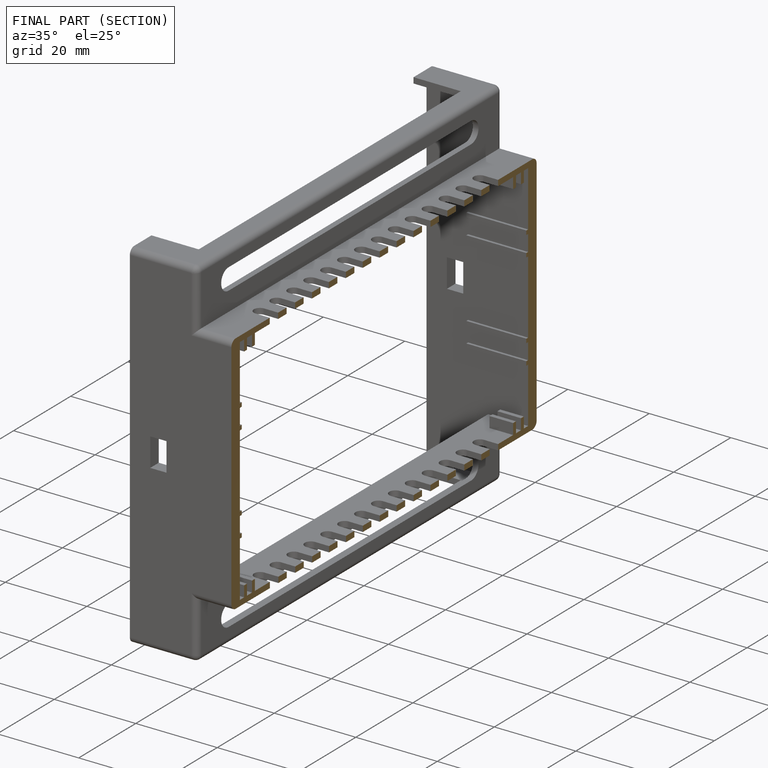
[diagram: finished part — half-section view (interior)]
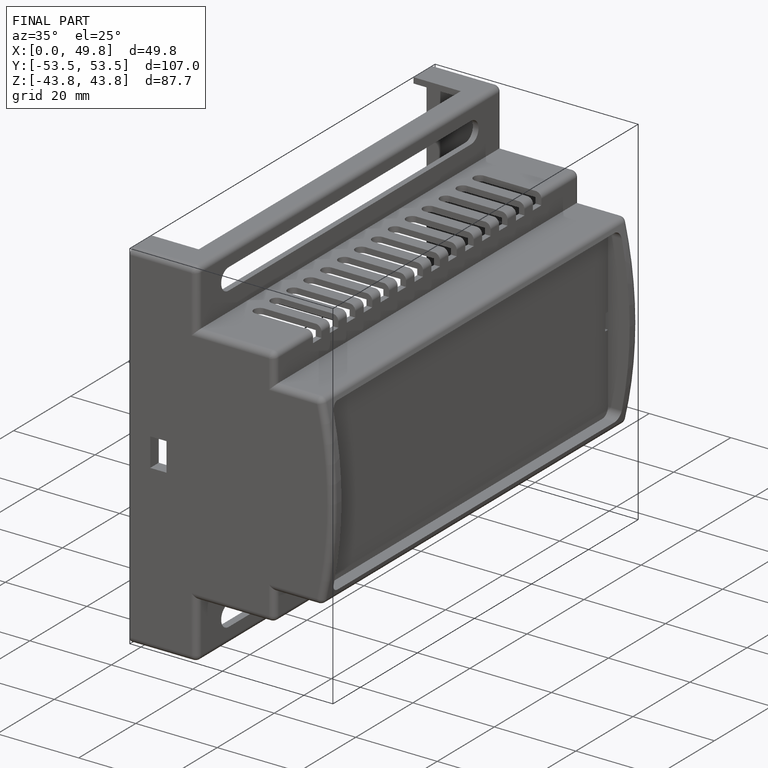
[diagram: finished part — iso view with bounding-box wireframe]
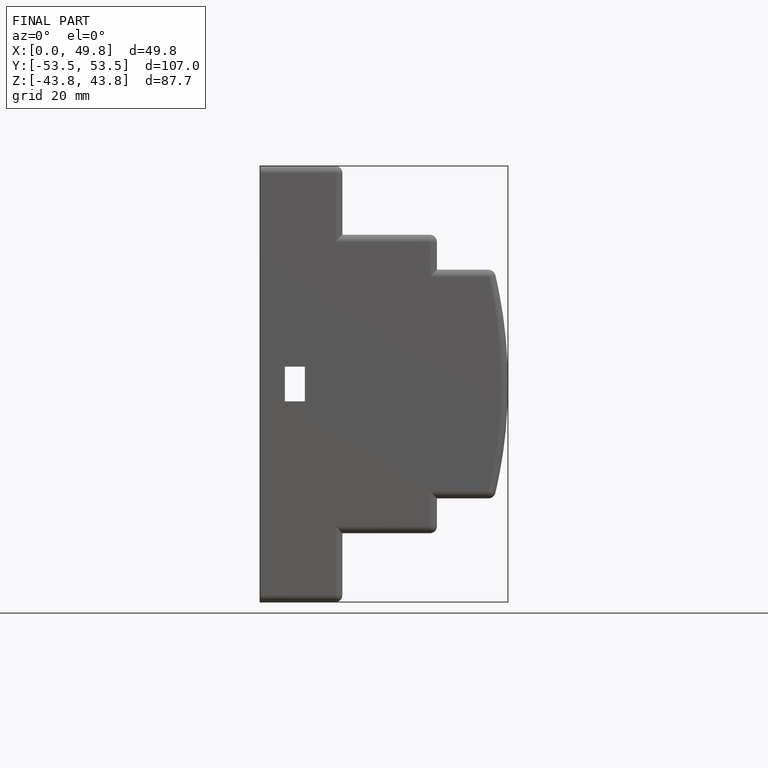
[diagram: finished part — front view with bounding-box wireframe]
